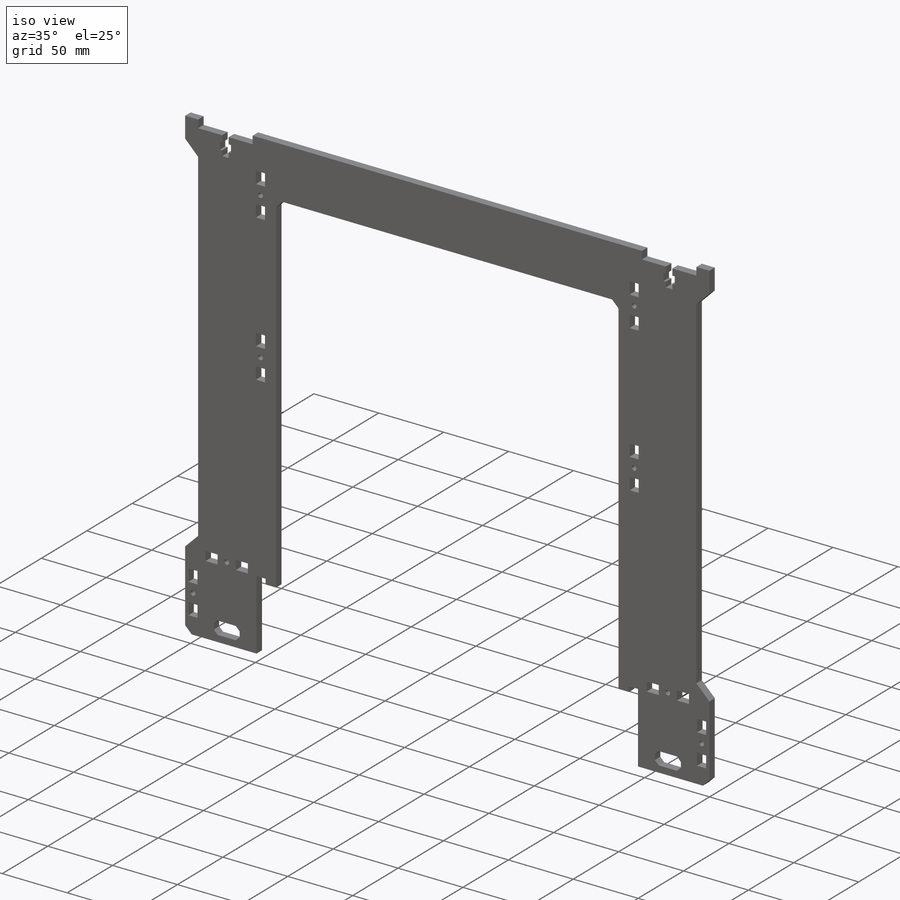
[diagram: iso view]
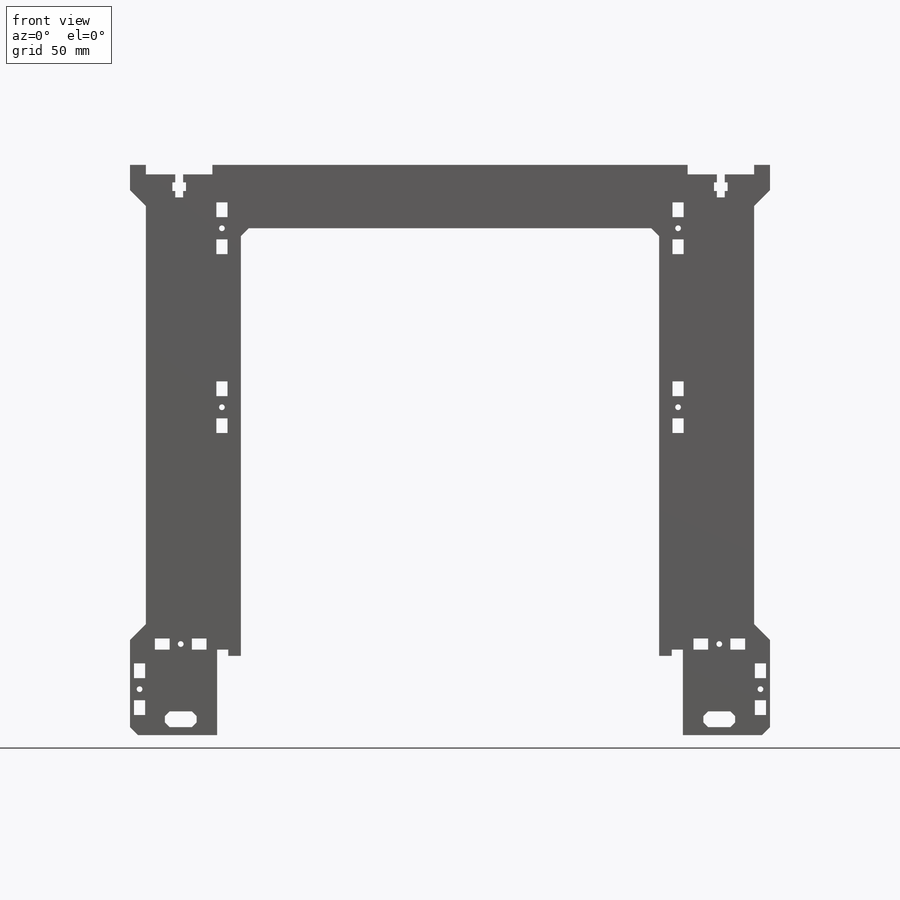
[diagram: front view]
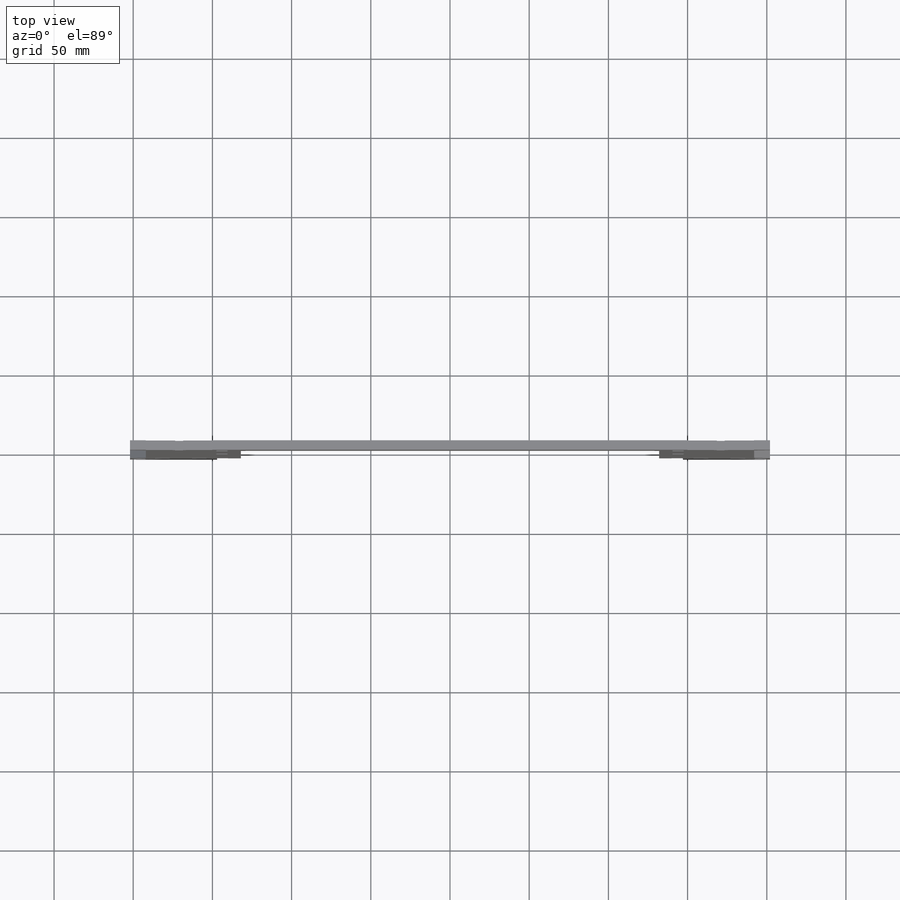
[diagram: top view]
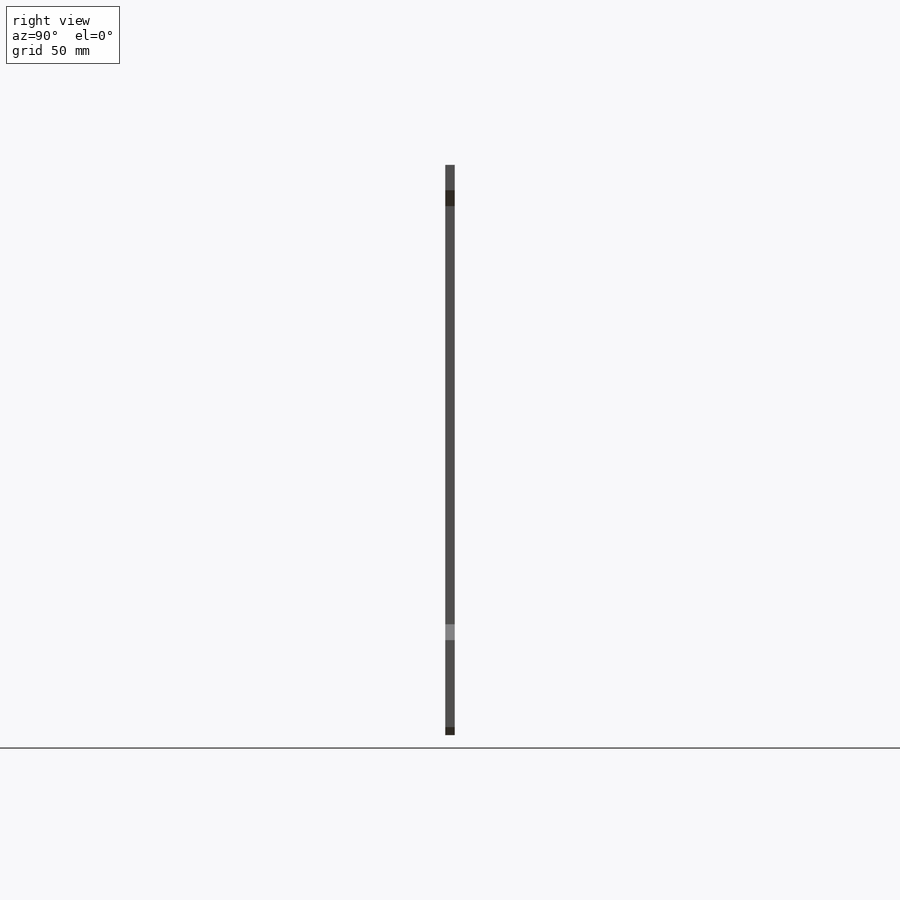
[diagram: right view]
SOLIDWORKS PART (.sldprt)
format: sldprt  version: not decoded by parser v0  size: 401,920 bytes
history: native  units: mm
features: plane x3, extrude x3, sketch x2, material x1, cut_extrude x1, chamfer x1, mirror x1 (+10 scaffold rows collapsed)
feature tree (22):
  scaffold x10  (default folders/planes/origin — collapsed)
  material  "Matériau <non spécifié>"
  plane  "Plan de face"
  plane  "Plan de dessus"
  plane  "Plan de droite"
  sketch  "Esquisse1"  dims[c1.D1=40.0mm c1.D2=404.0mm c1.D3=42.0mm c1.D4=6.0mm c1.D5=16.0mm c1.D6=~150.352792mm c2.D6=45.0deg c2.D7=10.0mm c2.D8=360.0mm c2.D9=60.0mm c2.D10=60.0mm c2.D11=8.0mm c2.D12=7.0mm c2.D13=50.0mm c2.D14=4.0mm c2.D15=~9.757748mm]
  extrude  "Boss.-Extru.1"  Depth=6mm
  sketch  "Esquisse2"  dims[D1=3.6mm D2=9.3mm D3=7.0mm D4=7.0mm]
  extrude  "cable_hole"  Depth=20mm
  extrude  "attache_male"  Depth=1mm
  cut_extrude  "Enlèv. mat.-Extru.1"  [1 undecoded]
  chamfer  "Chanfrein1"  Distance=5mm Angle=45deg
  mirror  "Symétrie1"
decode coverage: 6 of 8 modeling features carry decoded parameters
note: ~ marks probable driven/reference dimensions
note: 1 parameter value undecoded
note: suppression state not decoded; provenance and decode notes live in map.json
